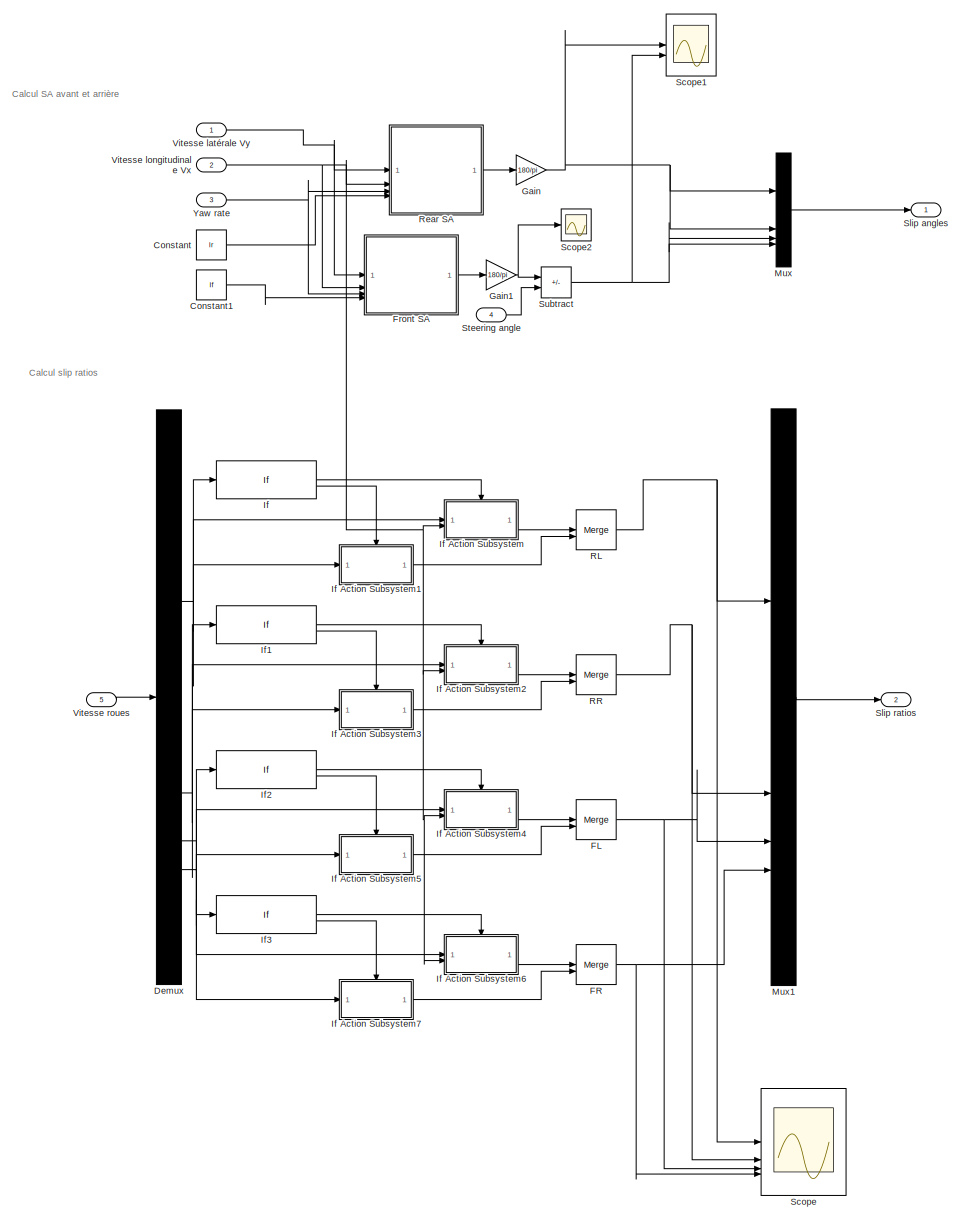
[diagram: root canvas - part 1/1, most of the canvas]
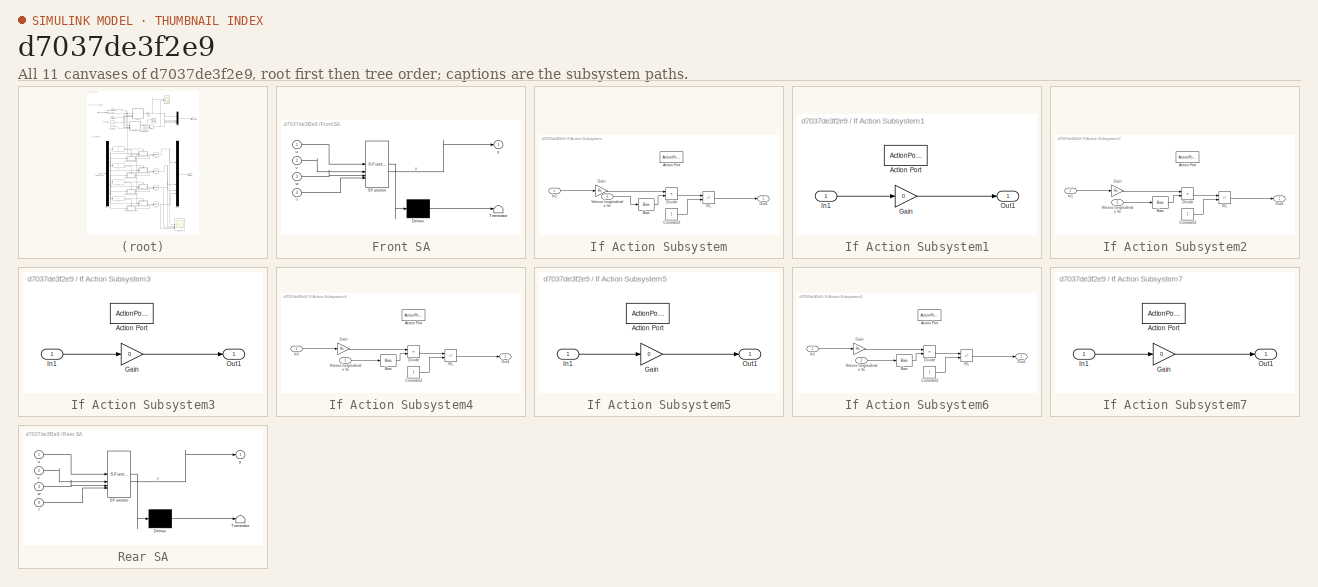
[diagram: thumbnail index - all 11 canvases of the model, root first then tree order]
MODEL slx_d7037de3f2e9
KIND model
CONFIG AbsTol = auto
CONFIG EnableMultiTasking = off
CONFIG FixedStep = Ts
CONFIG MaxStep = auto
CONFIG MinStep = auto
CONFIG RelTol = 1e-3
CONFIG SampleTimeConstraint = Unconstrained
CONFIG SolverName = FixedStepAuto
CONFIG StartTime = 0.0
CONFIG StopTime = 10.0
BLOCK [Constant] Constant
  Value = lr
BLOCK [Constant] Constant1
  Value = lf
BLOCK [Demux] Demux
BLOCK [Merge] FL
BLOCK [Merge] FR
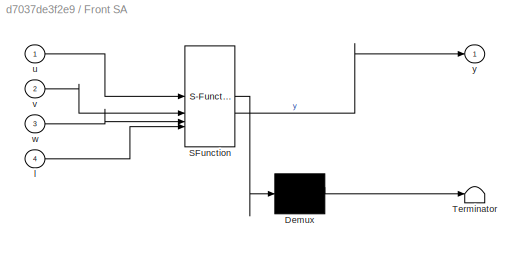
BLOCK [SubSystem] Front SA
  ErrorFcn = Stateflow.Translate.translate
  PermitHierarchicalResolution = ExplicitOnly
  SFBlockType = MATLAB Function
  TreatAsAtomicUnit = on
BLOCK [Demux] Front SA/ Demux 
  Outputs = 1
BLOCK [S-Function] Front SA/ SFunction 
  EnableBusSupport = on
  FunctionName = sf_sfun
  PortCounts = [4 2]
  SFcnIsStateOwnerBlock = off
  SFunctionDeploymentMode = off
  Tag = Stateflow S-Function 1
BLOCK [Terminator] Front SA/ Terminator 
BLOCK [Inport] Front SA/l
  Port = 4
BLOCK [Inport] Front SA/u
BLOCK [Inport] Front SA/v
  Port = 2
BLOCK [Inport] Front SA/w
  Port = 3
BLOCK [Outport] Front SA/y
BLOCK [Gain] Gain
  Gain = 180/pi
BLOCK [Gain] Gain1
  Gain = 180/pi
BLOCK [If] If
  IfExpression = u1 > 0.1
BLOCK [SubSystem] If Action Subsystem
  TreatAsAtomicUnit = on
BLOCK [ActionPort] If Action Subsystem/Action Port
  ActionPortLabel = if(u1 > 0.1)
BLOCK [Bias] If Action Subsystem/Bias
  Bias = epsilon
  SaturateOnIntegerOverflow = off
BLOCK [Constant] If Action Subsystem/Constant2
BLOCK [Product] If Action Subsystem/Divide
  Inputs = */
BLOCK [Gain] If Action Subsystem/Gain
  Gain = Re
BLOCK [Inport] If Action Subsystem/In1
BLOCK [Outport] If Action Subsystem/Out1
BLOCK [Sum] If Action Subsystem/RL
  IconShape = rectangular
  Inputs = +-
BLOCK [Inport] If Action Subsystem/Vitesse longitudinale Vx
  Port = 2
BLOCK [SubSystem] If Action Subsystem1
  TreatAsAtomicUnit = on
BLOCK [ActionPort] If Action Subsystem1/Action Port
  ActionPortLabel = else
BLOCK [Gain] If Action Subsystem1/Gain
  Gain = 0
BLOCK [Inport] If Action Subsystem1/In1
BLOCK [Outport] If Action Subsystem1/Out1
BLOCK [SubSystem] If Action Subsystem2
  TreatAsAtomicUnit = on
BLOCK [ActionPort] If Action Subsystem2/Action Port
  ActionPortLabel = if(u1 > 0.1)
BLOCK [Bias] If Action Subsystem2/Bias
  Bias = epsilon
  SaturateOnIntegerOverflow = off
BLOCK [Constant] If Action Subsystem2/Constant2
BLOCK [Product] If Action Subsystem2/Divide
  Inputs = */
BLOCK [Gain] If Action Subsystem2/Gain
  Gain = Re
BLOCK [Inport] If Action Subsystem2/In1
BLOCK [Outport] If Action Subsystem2/Out1
BLOCK [Sum] If Action Subsystem2/RL
  IconShape = rectangular
  Inputs = +-
BLOCK [Inport] If Action Subsystem2/Vitesse longitudinale Vx
  Port = 2
BLOCK [SubSystem] If Action Subsystem3
  TreatAsAtomicUnit = on
BLOCK [ActionPort] If Action Subsystem3/Action Port
  ActionPortLabel = else
BLOCK [Gain] If Action Subsystem3/Gain
  Gain = 0
BLOCK [Inport] If Action Subsystem3/In1
BLOCK [Outport] If Action Subsystem3/Out1
BLOCK [SubSystem] If Action Subsystem4
  TreatAsAtomicUnit = on
BLOCK [ActionPort] If Action Subsystem4/Action Port
  ActionPortLabel = if(u1 > 0.1)
BLOCK [Bias] If Action Subsystem4/Bias
  Bias = epsilon
  SaturateOnIntegerOverflow = off
BLOCK [Constant] If Action Subsystem4/Constant2
BLOCK [Product] If Action Subsystem4/Divide
  Inputs = */
BLOCK [Gain] If Action Subsystem4/Gain
  Gain = Re
BLOCK [Inport] If Action Subsystem4/In1
BLOCK [Outport] If Action Subsystem4/Out1
BLOCK [Sum] If Action Subsystem4/RL
  IconShape = rectangular
  Inputs = +-
BLOCK [Inport] If Action Subsystem4/Vitesse longitudinale Vx
  Port = 2
BLOCK [SubSystem] If Action Subsystem5
  TreatAsAtomicUnit = on
BLOCK [ActionPort] If Action Subsystem5/Action Port
  ActionPortLabel = else
BLOCK [Gain] If Action Subsystem5/Gain
  Gain = 0
BLOCK [Inport] If Action Subsystem5/In1
BLOCK [Outport] If Action Subsystem5/Out1
BLOCK [SubSystem] If Action Subsystem6
  TreatAsAtomicUnit = on
BLOCK [ActionPort] If Action Subsystem6/Action Port
  ActionPortLabel = if(u1 > 0.1)
BLOCK [Bias] If Action Subsystem6/Bias
  Bias = epsilon
  SaturateOnIntegerOverflow = off
BLOCK [Constant] If Action Subsystem6/Constant2
BLOCK [Product] If Action Subsystem6/Divide
  Inputs = */
BLOCK [Gain] If Action Subsystem6/Gain
  Gain = Re
BLOCK [Inport] If Action Subsystem6/In1
BLOCK [Outport] If Action Subsystem6/Out1
BLOCK [Sum] If Action Subsystem6/RL
  IconShape = rectangular
  Inputs = +-
BLOCK [Inport] If Action Subsystem6/Vitesse longitudinale Vx
  Port = 2
BLOCK [SubSystem] If Action Subsystem7
  TreatAsAtomicUnit = on
BLOCK [ActionPort] If Action Subsystem7/Action Port
  ActionPortLabel = else
BLOCK [Gain] If Action Subsystem7/Gain
  Gain = 0
BLOCK [Inport] If Action Subsystem7/In1
BLOCK [Outport] If Action Subsystem7/Out1
BLOCK [If] If1
  IfExpression = u1 > 0.1
BLOCK [If] If2
  IfExpression = u1 > 0.1
BLOCK [If] If3
  IfExpression = u1 > 0.1
BLOCK [Mux] Mux
  DisplayOption = bar
BLOCK [Mux] Mux1
  DisplayOption = bar
BLOCK [Merge] RL
BLOCK [Merge] RR
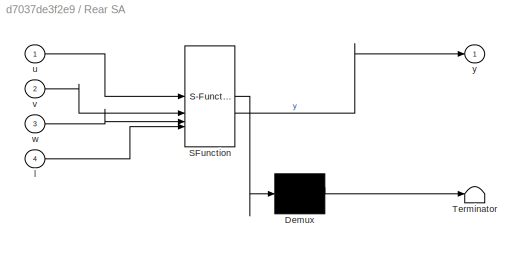
BLOCK [SubSystem] Rear SA
  ErrorFcn = Stateflow.Translate.translate
  PermitHierarchicalResolution = ExplicitOnly
  SFBlockType = MATLAB Function
  TreatAsAtomicUnit = on
BLOCK [Demux] Rear SA/ Demux 
  Outputs = 1
BLOCK [S-Function] Rear SA/ SFunction 
  EnableBusSupport = on
  FunctionName = sf_sfun
  PortCounts = [4 2]
  SFcnIsStateOwnerBlock = off
  SFunctionDeploymentMode = off
  Tag = Stateflow S-Function 2
BLOCK [Terminator] Rear SA/ Terminator 
BLOCK [Inport] Rear SA/l
  Port = 4
BLOCK [Inport] Rear SA/u
BLOCK [Inport] Rear SA/v
  Port = 2
BLOCK [Inport] Rear SA/w
  Port = 3
BLOCK [Outport] Rear SA/y
BLOCK [Scope] Scope
  Floating = off
  NumInputPorts = 4
  ScopeSpecificationString = Simulink.scopes.TimeScopeBlockCfg('CurrentConfiguration', extmgr.ConfigurationSet(extmgr.Configuration('Core','General UI',true),extmgr.Configuration('Core','Source UI',true),extmgr.Configuration('Sources','WiredSimulink',true),extmgr.Configuration('Visuals','Time Domain',true,'SerializedDisplays',{struct('MinYLimReal','-4.61871','MaxYLimReal','7.48173','YLabelReal','','MinYLimMag','0.00000','MaxY...<+1590ch>
BLOCK [Scope] Scope1
  Floating = off
  NumInputPorts = 2
  ScopeSpecificationString = Simulink.scopes.TimeScopeBlockCfg('CurrentConfiguration', extmgr.ConfigurationSet(extmgr.Configuration('Core','General UI',true),extmgr.Configuration('Core','Source UI',true),extmgr.Configuration('Sources','WiredSimulink',true,'DataLoggingVariableName','ScopeData1'),extmgr.Configuration('Visuals','Time Domain',true,'SerializedDisplays',{struct('MinYLimReal','-0.71596','MaxYLimReal','0.80363','YLab...<+1579ch>
BLOCK [Scope] Scope2
  Floating = off
  NumInputPorts = 1
  ScopeSpecificationString = Simulink.scopes.TimeScopeBlockCfg('CurrentConfiguration', extmgr.ConfigurationSet(extmgr.Configuration('Core','General UI',true),extmgr.Configuration('Core','Source UI',true),extmgr.Configuration('Sources','WiredSimulink',true,'DataLoggingVariableName','ScopeData1'),extmgr.Configuration('Visuals','Time Domain',true,'SerializedDisplays',{struct('MinYLimReal','-12.47083','MaxYLimReal','12.4757','YLa...<+1484ch>
BLOCK [Outport] Slip angles
BLOCK [Outport] Slip ratios
  Port = 2
BLOCK [Inport] Steering angle
  Port = 4
BLOCK [Sum] Subtract
  IconShape = rectangular
  Inputs = +-
BLOCK [Inport] Vitesse latérale Vy
BLOCK [Inport] Vitesse longitudinale Vx
  Port = 2
BLOCK [Inport] Vitesse roues
  Port = 5
BLOCK [Inport] Yaw rate
  Port = 3
ANNOTATION (root): Calcul SA avant et arrière
ANNOTATION (root): Calcul slip ratios
LINE Constant1:1 -> Front SA:4
LINE Constant:1 -> Rear SA:4
NET Demux:1 -> If Action Subsystem1:1, If Action Subsystem:1, If:1
NET Demux:2 -> If Action Subsystem2:1, If Action Subsystem3:1, If1:1
NET Demux:3 -> If Action Subsystem4:1, If Action Subsystem5:1, If2:1
NET Demux:4 -> If Action Subsystem6:1, If Action Subsystem7:1, If3:1
NET FL:1 -> Mux1:3, Scope:3
NET FR:1 -> Mux1:4, Scope:4
LINE Front SA:1 -> Gain1:1
NET Gain1:1 -> Scope2:1, Subtract:1
NET Gain:1 -> Mux:1, Mux:2, Scope1:1
LINE If Action Subsystem/Bias:1 -> If Action Subsystem/Divide:2
LINE If Action Subsystem/Constant2:1 -> If Action Subsystem/RL:2
LINE If Action Subsystem/Divide:1 -> If Action Subsystem/RL:1
LINE If Action Subsystem/Gain:1 -> If Action Subsystem/Divide:1
LINE If Action Subsystem/In1:1 -> If Action Subsystem/Gain:1
LINE If Action Subsystem/RL:1 -> If Action Subsystem/Out1:1
LINE If Action Subsystem/Vitesse longitudinale Vx:1 -> If Action Subsystem/Bias:1
LINE If Action Subsystem1/Gain:1 -> If Action Subsystem1/Out1:1
LINE If Action Subsystem1/In1:1 -> If Action Subsystem1/Gain:1
LINE If Action Subsystem1:1 -> RL:2
LINE If Action Subsystem2/Bias:1 -> If Action Subsystem2/Divide:2
LINE If Action Subsystem2/Constant2:1 -> If Action Subsystem2/RL:2
LINE If Action Subsystem2/Divide:1 -> If Action Subsystem2/RL:1
LINE If Action Subsystem2/Gain:1 -> If Action Subsystem2/Divide:1
LINE If Action Subsystem2/In1:1 -> If Action Subsystem2/Gain:1
LINE If Action Subsystem2/RL:1 -> If Action Subsystem2/Out1:1
LINE If Action Subsystem2/Vitesse longitudinale Vx:1 -> If Action Subsystem2/Bias:1
LINE If Action Subsystem2:1 -> RR:1
LINE If Action Subsystem3/Gain:1 -> If Action Subsystem3/Out1:1
LINE If Action Subsystem3/In1:1 -> If Action Subsystem3/Gain:1
LINE If Action Subsystem3:1 -> RR:2
LINE If Action Subsystem4/Bias:1 -> If Action Subsystem4/Divide:2
LINE If Action Subsystem4/Constant2:1 -> If Action Subsystem4/RL:2
LINE If Action Subsystem4/Divide:1 -> If Action Subsystem4/RL:1
LINE If Action Subsystem4/Gain:1 -> If Action Subsystem4/Divide:1
LINE If Action Subsystem4/In1:1 -> If Action Subsystem4/Gain:1
LINE If Action Subsystem4/RL:1 -> If Action Subsystem4/Out1:1
LINE If Action Subsystem4/Vitesse longitudinale Vx:1 -> If Action Subsystem4/Bias:1
LINE If Action Subsystem4:1 -> FL:1
LINE If Action Subsystem5/Gain:1 -> If Action Subsystem5/Out1:1
LINE If Action Subsystem5/In1:1 -> If Action Subsystem5/Gain:1
LINE If Action Subsystem5:1 -> FL:2
LINE If Action Subsystem6/Bias:1 -> If Action Subsystem6/Divide:2
LINE If Action Subsystem6/Constant2:1 -> If Action Subsystem6/RL:2
LINE If Action Subsystem6/Divide:1 -> If Action Subsystem6/RL:1
LINE If Action Subsystem6/Gain:1 -> If Action Subsystem6/Divide:1
LINE If Action Subsystem6/In1:1 -> If Action Subsystem6/Gain:1
LINE If Action Subsystem6/RL:1 -> If Action Subsystem6/Out1:1
LINE If Action Subsystem6/Vitesse longitudinale Vx:1 -> If Action Subsystem6/Bias:1
LINE If Action Subsystem6:1 -> FR:1
LINE If Action Subsystem7/Gain:1 -> If Action Subsystem7/Out1:1
LINE If Action Subsystem7/In1:1 -> If Action Subsystem7/Gain:1
LINE If Action Subsystem7:1 -> FR:2
LINE If Action Subsystem:1 -> RL:1
LINE If1:1 -> If Action Subsystem2:ifaction
LINE If1:2 -> If Action Subsystem3:ifaction
LINE If2:1 -> If Action Subsystem4:ifaction
LINE If2:2 -> If Action Subsystem5:ifaction
LINE If3:1 -> If Action Subsystem6:ifaction
LINE If3:2 -> If Action Subsystem7:ifaction
LINE If:1 -> If Action Subsystem:ifaction
LINE If:2 -> If Action Subsystem1:ifaction
LINE Mux1:1 -> Slip ratios:1
LINE Mux:1 -> Slip angles:1
NET RL:1 -> Mux1:1, Scope:1
NET RR:1 -> Mux1:2, Scope:2
LINE Rear SA:1 -> Gain:1
LINE Steering angle:1 -> Subtract:2
NET Subtract:1 -> Mux:3, Mux:4, Scope1:2
NET Vitesse latérale Vy:1 -> Front SA:1, Rear SA:1
NET Vitesse longitudinale Vx:1 -> Front SA:2, If Action Subsystem2:2, If Action Subsystem4:2, If Action Subsystem6:2, If Action Subsystem:2, Rear SA:2
LINE Vitesse roues:1 -> Demux:1
NET Yaw rate:1 -> Front SA:3, Rear SA:3
note: NET lines group one-source signal fan-out (src -> all destinations, sorted); 1:1 wires keep LINE
CHART Front SA states=1 transitions=1
  STATE_LABEL 'eML_blk_kernel()'
  STATE_LABEL 'SCRIPT:\nfunction y = fcn(u, v, w, l)\n\ny = atan((u+l*w)/v);\nend\n'
CHART Rear SA states=1 transitions=1
  STATE_LABEL 'eML_blk_kernel()'
  STATE_LABEL 'SCRIPT:\nfunction y = fcn(u, v, w, l)\n\ny = atan((u-l*w)/v);\nend\n'
CHART  states=0 transitions=0
CHART  states=0 transitions=0
